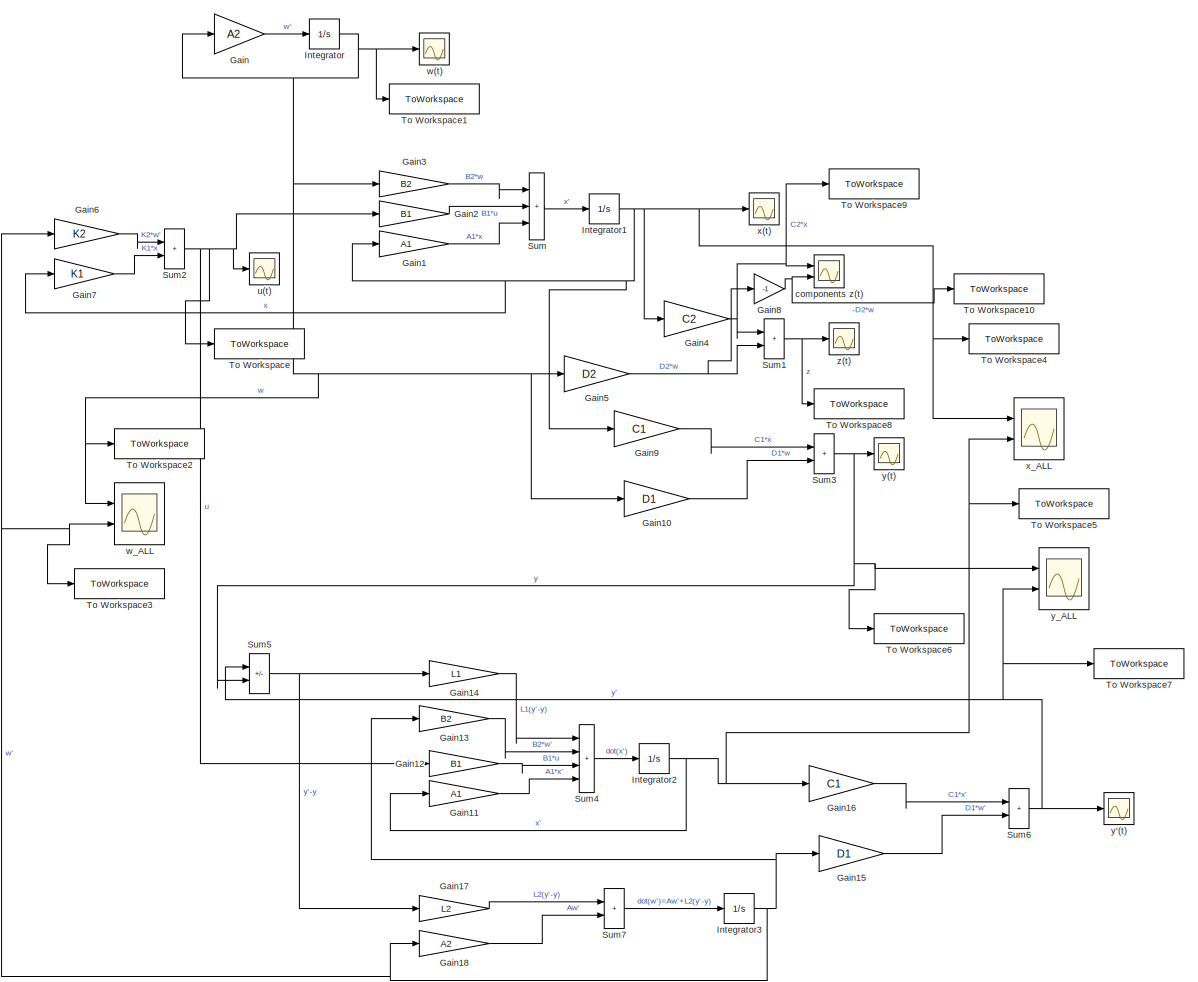
[diagram: root canvas - part 1/2, most of the canvas]
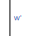
[diagram: root canvas - part 2/2, bottom left region]
MODEL slx_9bf9284c1179
KIND model
CONFIG AbsTol = auto
CONFIG EnableMultiTasking = off
CONFIG FixedStep = 0.001
CONFIG MaxStep = auto
CONFIG MinStep = auto
CONFIG RelTol = 1e-3
CONFIG SampleTimeConstraint = Unconstrained
CONFIG SolverName = FixedStepAuto
CONFIG StartTime = 0.0
CONFIG StopTime = 15
BLOCK [Gain] Gain
  Gain = A2
  Multiplication = Matrix(K*u) (u vector)
BLOCK [Gain] Gain1
  Gain = A1
  Multiplication = Matrix(K*u) (u vector)
BLOCK [Gain] Gain10
  Gain = D1
  Multiplication = Matrix(K*u) (u vector)
BLOCK [Gain] Gain11
  Gain = A1
  Multiplication = Matrix(K*u) (u vector)
BLOCK [Gain] Gain12
  Gain = B1
  Multiplication = Matrix(K*u) (u vector)
BLOCK [Gain] Gain13
  Gain = B2
  Multiplication = Matrix(K*u) (u vector)
BLOCK [Gain] Gain14
  Gain = L1
  Multiplication = Matrix(K*u) (u vector)
BLOCK [Gain] Gain15
  Gain = D1
  Multiplication = Matrix(K*u) (u vector)
BLOCK [Gain] Gain16
  Gain = C1
  Multiplication = Matrix(K*u) (u vector)
BLOCK [Gain] Gain17
  Gain = L2
  Multiplication = Matrix(K*u) (u vector)
BLOCK [Gain] Gain18
  Gain = A2
  Multiplication = Matrix(K*u) (u vector)
BLOCK [Gain] Gain2
  Gain = B1
  Multiplication = Matrix(K*u) (u vector)
BLOCK [Gain] Gain3
  Gain = B2
  Multiplication = Matrix(K*u) (u vector)
BLOCK [Gain] Gain4
  Gain = C2
  Multiplication = Matrix(K*u) (u vector)
BLOCK [Gain] Gain5
  Gain = D2
  Multiplication = Matrix(K*u) (u vector)
BLOCK [Gain] Gain6
  Gain = K2
  Multiplication = Matrix(K*u) (u vector)
BLOCK [Gain] Gain7
  Gain = K1
  Multiplication = Matrix(K*u) (u vector)
BLOCK [Gain] Gain8
  Gain = -1
BLOCK [Gain] Gain9
  Gain = C1
  Multiplication = Matrix(K*u) (u vector)
BLOCK [Integrator] Integrator
  InitialCondition = [1;1;1;1]
  Ports = [1, 1]
BLOCK [Integrator] Integrator1
  InitialCondition = [0;0;0]
  Ports = [1, 1]
BLOCK [Integrator] Integrator2
  InitialCondition = [0;0;0]
  Ports = [1, 1]
BLOCK [Integrator] Integrator3
  Ports = [1, 1]
BLOCK [Sum] Sum
  IconShape = rectangular
  Inputs = |+++
  Ports = [3, 1]
BLOCK [Sum] Sum1
  IconShape = rectangular
  Inputs = |++
  Ports = [2, 1]
BLOCK [Sum] Sum2
  IconShape = rectangular
  Inputs = |++
  Ports = [2, 1]
BLOCK [Sum] Sum3
  IconShape = rectangular
  Inputs = |++
  Ports = [2, 1]
BLOCK [Sum] Sum4
  IconShape = rectangular
  Inputs = |++++
  Ports = [4, 1]
BLOCK [Sum] Sum5
  IconShape = rectangular
  Inputs = |+-
  Ports = [2, 1]
BLOCK [Sum] Sum6
  IconShape = rectangular
  Inputs = |++
  Ports = [2, 1]
BLOCK [Sum] Sum7
  IconShape = rectangular
  Inputs = |++
  Ports = [2, 1]
BLOCK [ToWorkspace] To Workspace
  FixptAsFi = on
  MaxDataPoints = inf
  Ports = [1]
  SampleTime = -1
  SaveFormat = Timeseries
  VariableName = u
BLOCK [ToWorkspace] To Workspace1
  FixptAsFi = on
  MaxDataPoints = inf
  Ports = [1]
  SampleTime = -1
  SaveFormat = Timeseries
  VariableName = w
BLOCK [ToWorkspace] To Workspace10
  FixptAsFi = on
  MaxDataPoints = inf
  Ports = [1]
  SampleTime = -1
  SaveFormat = Timeseries
  VariableName = D2w
BLOCK [ToWorkspace] To Workspace2
  FixptAsFi = on
  MaxDataPoints = inf
  Ports = [1]
  SampleTime = -1
  SaveFormat = Timeseries
  VariableName = ww
BLOCK [ToWorkspace] To Workspace3
  FixptAsFi = on
  MaxDataPoints = inf
  Ports = [1]
  SampleTime = -1
  SaveFormat = Timeseries
  VariableName = w1
BLOCK [ToWorkspace] To Workspace4
  FixptAsFi = on
  MaxDataPoints = inf
  Ports = [1]
  SampleTime = -1
  SaveFormat = Timeseries
  VariableName = x
BLOCK [ToWorkspace] To Workspace5
  FixptAsFi = on
  MaxDataPoints = inf
  Ports = [1]
  SampleTime = -1
  SaveFormat = Timeseries
  VariableName = x1
BLOCK [ToWorkspace] To Workspace6
  FixptAsFi = on
  MaxDataPoints = inf
  Ports = [1]
  SampleTime = -1
  SaveFormat = Timeseries
  VariableName = y
BLOCK [ToWorkspace] To Workspace7
  FixptAsFi = on
  MaxDataPoints = inf
  Ports = [1]
  SampleTime = -1
  SaveFormat = Timeseries
  VariableName = y1
BLOCK [ToWorkspace] To Workspace8
  FixptAsFi = on
  MaxDataPoints = inf
  Ports = [1]
  SampleTime = -1
  SaveFormat = Timeseries
  VariableName = z
BLOCK [ToWorkspace] To Workspace9
  FixptAsFi = on
  MaxDataPoints = inf
  Ports = [1]
  SampleTime = -1
  SaveFormat = Timeseries
  VariableName = C2x
BLOCK [Scope] components z(t)
  Floating = off
  NumInputPorts = 2
  Ports = [2]
  ScopeSpecificationString = Simulink.scopes.TimeScopeBlockCfg('CurrentConfiguration', extmgr.ConfigurationSet(extmgr.Configuration('Core','General UI',true),extmgr.Configuration('Core','Source UI',true),extmgr.Configuration('Sources','WiredSimulink',true,'DataLoggingVariableName','ScopeData4'),extmgr.Configuration('Visuals','Time Domain',true,'SerializedDisplays',{struct('MinYLimReal','-6.16528','MaxYLimReal','5.12948','YLab...<+1912ch>
BLOCK [Scope] u(t)
  Floating = off
  NumInputPorts = 1
  Ports = [1]
  ScopeSpecificationString = Simulink.scopes.TimeScopeBlockCfg('CurrentConfiguration', extmgr.ConfigurationSet(extmgr.Configuration('Core','General UI',true),extmgr.Configuration('Core','Source UI',true),extmgr.Configuration('Sources','WiredSimulink',true,'DataLoggingVariableName','ScopeData3'),extmgr.Configuration('Visuals','Time Domain',true,'SerializedDisplays',{struct('MinYLimReal','-16.96967','MaxYLimReal','19.16492','YL...<+1906ch>
BLOCK [Scope] w(t)
  Floating = off
  NumInputPorts = 1
  Ports = [1]
  ScopeSpecificationString = Simulink.scopes.TimeScopeBlockCfg('CurrentConfiguration', extmgr.ConfigurationSet(extmgr.Configuration('Core','General UI',true),extmgr.Configuration('Core','Source UI',true),extmgr.Configuration('Sources','WiredSimulink',true,'DataLoggingVariableName','ScopeData2'),extmgr.Configuration('Visuals','Time Domain',true,'SerializedDisplays',{struct('MinYLimReal','-1.76777','MaxYLimReal','1.76777','YLab...<+1920ch>
BLOCK [Scope] w_ALL
  Floating = off
  NumInputPorts = 2
  Ports = [2]
  ScopeSpecificationString = Simulink.scopes.TimeScopeBlockCfg('CurrentConfiguration', extmgr.ConfigurationSet(extmgr.Configuration('Core','General UI',true),extmgr.Configuration('Core','Source UI',true),extmgr.Configuration('Sources','WiredSimulink',true,'DataLoggingVariableName','ScopeData5'),extmgr.Configuration('Visuals','Time Domain',true,'SerializedDisplays',{struct('MinYLimReal','-3.45233','MaxYLimReal','2.91073','YLab...<+2434ch>
BLOCK [Scope] x(t)
  Floating = off
  NumInputPorts = 1
  Ports = [1]
  ScopeSpecificationString = Simulink.scopes.TimeScopeBlockCfg('CurrentConfiguration', extmgr.ConfigurationSet(extmgr.Configuration('Core','General UI',true),extmgr.Configuration('Core','Source UI',true),extmgr.Configuration('Sources','WiredSimulink',true),extmgr.Configuration('Visuals','Time Domain',true,'SerializedDisplays',{struct('MinYLimReal','-4.63371','MaxYLimReal','4.27515','YLabelReal','x','MinYLimMag','0.00000','Max...<+1875ch>
BLOCK [Scope] x_ALL
  Floating = off
  NumInputPorts = 2
  Ports = [2]
  ScopeSpecificationString = Simulink.scopes.TimeScopeBlockCfg('CurrentConfiguration', extmgr.ConfigurationSet(extmgr.Configuration('Core','General UI',true),extmgr.Configuration('Core','Source UI',true),extmgr.Configuration('Sources','WiredSimulink',true,'DataLoggingVariableName','ScopeData3'),extmgr.Configuration('Visuals','Time Domain',true,'SerializedDisplays',{struct('MinYLimReal','-5.56747','MaxYLimReal','11.59621','YLa...<+2200ch>
BLOCK [Scope] y'(t)
  Floating = off
  NumInputPorts = 1
  Ports = [1]
  ScopeSpecificationString = Simulink.scopes.TimeScopeBlockCfg('CurrentConfiguration', extmgr.ConfigurationSet(extmgr.Configuration('Core','General UI',true),extmgr.Configuration('Core','Source UI',true),extmgr.Configuration('Sources','WiredSimulink',true,'DataLoggingVariableName','ScopeData2'),extmgr.Configuration('Visuals','Time Domain',true,'SerializedDisplays',{struct('MinYLimReal','-7.5754','MaxYLimReal','6.29903','YLabe...<+1899ch>
BLOCK [Scope] y(t)
  Floating = off
  NumInputPorts = 1
  Ports = [1]
  ScopeSpecificationString = Simulink.scopes.TimeScopeBlockCfg('CurrentConfiguration', extmgr.ConfigurationSet(extmgr.Configuration('Core','General UI',true),extmgr.Configuration('Core','Source UI',true),extmgr.Configuration('Sources','WiredSimulink',true,'DataLoggingVariableName','ScopeData1'),extmgr.Configuration('Visuals','Time Domain',true,'SerializedDisplays',{struct('MinYLimReal','-4.65668','MaxYLimReal','1.8006','YLabe...<+1900ch>
BLOCK [Scope] y_ALL
  Floating = off
  NumInputPorts = 2
  Ports = [2]
  ScopeSpecificationString = Simulink.scopes.TimeScopeBlockCfg('CurrentConfiguration', extmgr.ConfigurationSet(extmgr.Configuration('Core','General UI',true),extmgr.Configuration('Core','Source UI',true),extmgr.Configuration('Sources','WiredSimulink',true,'DataLoggingVariableName','ScopeData4'),extmgr.Configuration('Visuals','Time Domain',true,'SerializedDisplays',{struct('MinYLimReal','-7.57788','MaxYLimReal','6.32135','YLab...<+1928ch>
BLOCK [Scope] z(t)
  Floating = off
  NumInputPorts = 1
  Ports = [1]
  ScopeSpecificationString = Simulink.scopes.TimeScopeBlockCfg('CurrentConfiguration', extmgr.ConfigurationSet(extmgr.Configuration('Core','General UI',true),extmgr.Configuration('Core','Source UI',true),extmgr.Configuration('Sources','WiredSimulink',true,'DataLoggingVariableName','ScopeData1'),extmgr.Configuration('Visuals','Time Domain',true,'SerializedDisplays',{struct('MinYLimReal','-4.9771','MaxYLimReal','4.79393','YLabe...<+1899ch>
LINE Gain10:1 -> Sum3:2
LINE Gain11:1 -> Sum4:4
LINE Gain12:1 -> Sum4:3
LINE Gain13:1 -> Sum4:2
LINE Gain14:1 -> Sum4:1
LINE Gain15:1 -> Sum6:2
LINE Gain16:1 -> Sum6:1
LINE Gain17:1 -> Sum7:1
LINE Gain18:1 -> Sum7:2
LINE Gain1:1 -> Sum:3
LINE Gain2:1 -> Sum:2
LINE Gain3:1 -> Sum:1
NET Gain4:1 -> Sum1:1, To Workspace9:1, components z(t):1
NET Gain5:1 -> Gain8:1, Sum1:2
LINE Gain6:1 -> Sum2:1
LINE Gain7:1 -> Sum2:2
NET Gain8:1 -> To Workspace10:1, components z(t):2
LINE Gain9:1 -> Sum3:1
LINE Gain:1 -> Integrator:1
NET Integrator1:1 -> Gain1:1, Gain4:1, Gain7:1, Gain9:1, To Workspace4:1, x(t):1, x_ALL:1
NET Integrator2:1 -> Gain11:1, Gain16:1, To Workspace5:1, x_ALL:2
NET Integrator3:1 -> Gain13:1, Gain15:1, Gain18:1, Gain6:1, To Workspace3:1, w_ALL:2
NET Integrator:1 -> Gain10:1, Gain3:1, Gain5:1, Gain:1, To Workspace1:1, To Workspace2:1, w(t):1, w_ALL:1
NET Sum1:1 -> To Workspace8:1, z(t):1
NET Sum2:1 -> Gain12:1, Gain2:1, To Workspace:1, u(t):1
NET Sum3:1 -> Sum5:2, To Workspace6:1, y(t):1, y_ALL:1
LINE Sum4:1 -> Integrator2:1
NET Sum5:1 -> Gain14:1, Gain17:1
NET Sum6:1 -> Sum5:1, To Workspace7:1, y'(t):1, y_ALL:2
LINE Sum7:1 -> Integrator3:1
LINE Sum:1 -> Integrator1:1
note: NET lines group one-source signal fan-out (src -> all destinations, sorted); 1:1 wires keep LINE
